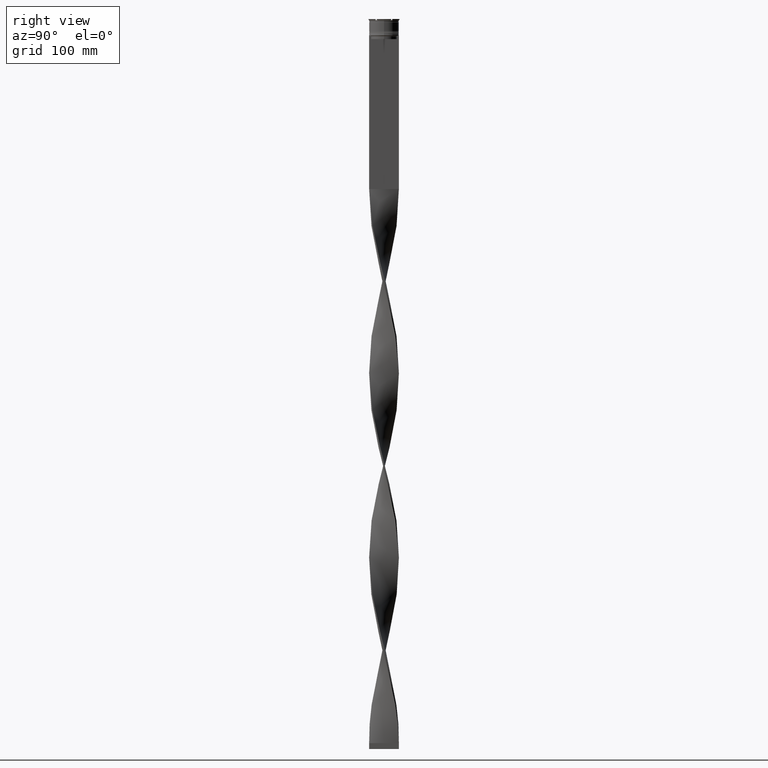
[diagram: clean part render]
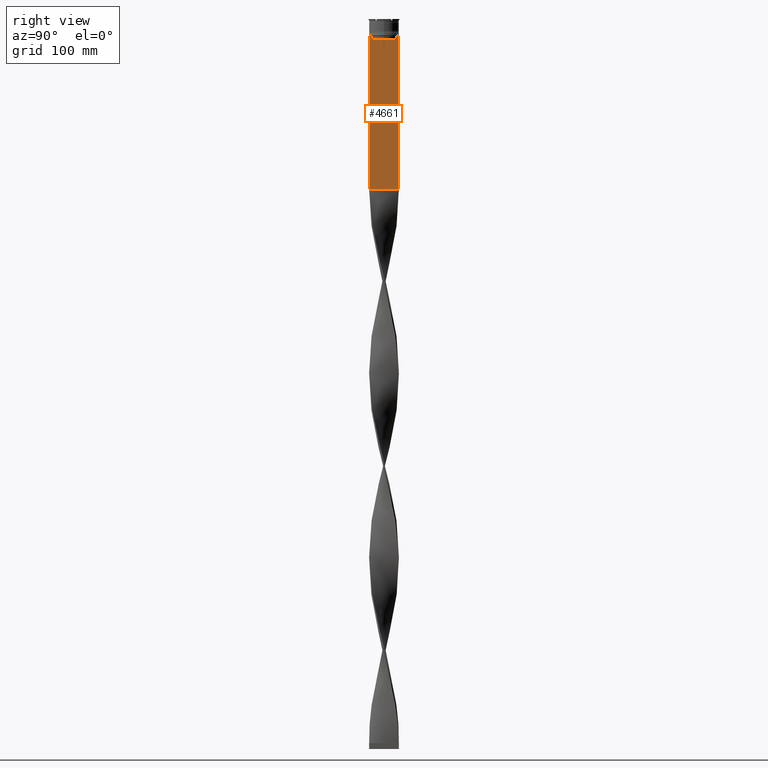
[diagram: same view with one face highlighted and labeled with its STEP entity id]
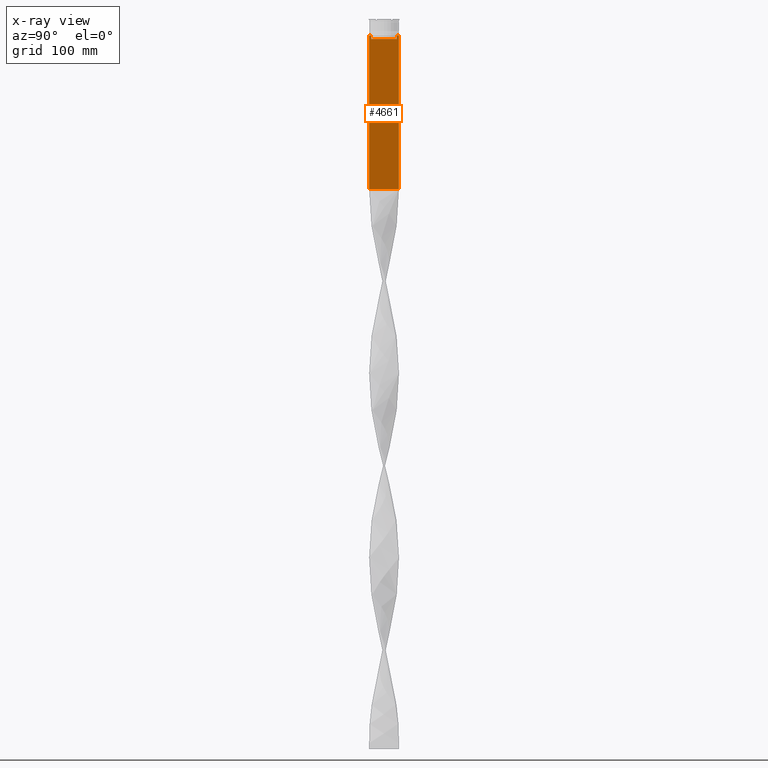
[diagram: x-ray of the same camera — body ghosted, the highlighted face saturated]
A machine part, right view. The second image highlights one B-rep face of the part: STEP entity #4661.
The next image is the same camera in x-ray: the body ghosted, the highlighted face saturated — about 0% of this face is hidden behind the body in this view.
In plain terms, the highlighted planar face has unit normal (-1, 0, 0).
Its self-contained STEP definition (entity closure, byte-faithful):
#203 = VECTOR ( 'NONE', #1171, 1000.000000000000000 ) ;
#249 = CARTESIAN_POINT ( 'NONE',  ( 0.7500000000000002220, 10.90000000000000213, -17.00000000000000000 ) ) ;
#312 = CARTESIAN_POINT ( 'NONE',  ( 0.7500000000000002220, -10.87416663473574197, -14.50000000000000000 ) ) ;
#315 = ORIENTED_EDGE ( 'NONE', *, *, #3338, .T. ) ;
#395 = VERTEX_POINT ( 'NONE', #4712 ) ;
#460 = ORIENTED_EDGE ( 'NONE', *, *, #1475, .T. ) ;
#494 = EDGE_CURVE ( 'NONE', #2293, #686, #2866, .T. ) ;
#495 = LINE ( 'NONE', #955, #4367 ) ;
#535 = CARTESIAN_POINT ( 'NONE',  ( 0.7500000000000002220, 10.87416663473574197, 0.000000000000000000 ) ) ;
#547 = CARTESIAN_POINT ( 'NONE',  ( 0.7500000000000002220, -11.37530219378809093, -14.00000000000000178 ) ) ;
#559 = ORIENTED_EDGE ( 'NONE', *, *, #494, .T. ) ;
#686 = VERTEX_POINT ( 'NONE', #2444 ) ;
#690 = CARTESIAN_POINT ( 'NONE',  ( 0.7500000000000002220, -12.50000000000000000, 11.04495957273638673 ) ) ;
#732 = B_SPLINE_CURVE_WITH_KNOTS ( 'NONE', 3,
 ( #312, #2910, #1038, #2467 ),
 .UNSPECIFIED., .F., .F.,
 ( 4, 4 ),
 ( 0.05009718908159448147, 0.05081156920313959630 ),
 .UNSPECIFIED. ) ;
#755 = VECTOR ( 'NONE', #1967, 1000.000000000000000 ) ;
#893 = LINE ( 'NONE', #1679, #4834 ) ;
#942 = FACE_OUTER_BOUND ( 'NONE', #2291, .T. ) ;
#955 = CARTESIAN_POINT ( 'NONE',  ( 0.7500000000000002220, -12.50000000000000000, -14.00000000000000178 ) ) ;
#968 = LINE ( 'NONE', #535, #4756 ) ;
#1038 = CARTESIAN_POINT ( 'NONE',  ( 0.7500000000000002220, -11.20826532207830439, -14.16667499063191826 ) ) ;
#1041 = VERTEX_POINT ( 'NONE', #1154 ) ;
#1154 = CARTESIAN_POINT ( 'NONE',  ( 0.7500000000000002220, -10.87416663473574197, -14.50000000000000000 ) ) ;
#1171 = DIRECTION ( 'NONE',  ( -0.000000000000000000, -0.000000000000000000, 1.000000000000000000 ) ) ;
#1211 = CARTESIAN_POINT ( 'NONE',  ( 0.7500000000000002220, 12.37729776647553059, -14.00000000000000178 ) ) ;
#1245 = EDGE_CURVE ( 'NONE', #1041, #1670, #732, .T. ) ;
#1341 = VERTEX_POINT ( 'NONE', #4137 ) ;
#1441 = CARTESIAN_POINT ( 'NONE',  ( 0.7500000000000002220, 11.37530219378809093, -14.00000000000000178 ) ) ;
#1475 = EDGE_CURVE ( 'NONE', #2547, #4163, #1497, .T. ) ;
#1482 = DIRECTION ( 'NONE',  ( 0.000000000000000000, 0.000000000000000000, -1.000000000000000000 ) ) ;
#1495 = VERTEX_POINT ( 'NONE', #4109 ) ;
#1497 = LINE ( 'NONE', #4548, #2939 ) ;
#1513 = LINE ( 'NONE', #4176, #755 ) ;
#1519 = DIRECTION ( 'NONE',  ( 0.000000000000000000, 0.000000000000000000, -1.000000000000000000 ) ) ;
#1562 = ORIENTED_EDGE ( 'NONE', *, *, #2566, .T. ) ;
#1670 = VERTEX_POINT ( 'NONE', #547 ) ;
#1679 = CARTESIAN_POINT ( 'NONE',  ( 0.7500000000000002220, -12.50000000000000000, -14.00000000000000178 ) ) ;
#1753 = CARTESIAN_POINT ( 'NONE',  ( 0.7500000000000002220, -12.50000000000000000, -14.00000000000000178 ) ) ;
#1838 = DIRECTION ( 'NONE',  ( 0.000000000000000000, -1.000000000000000000, 0.000000000000000000 ) ) ;
#1967 = DIRECTION ( 'NONE',  ( 0.000000000000000000, 1.000000000000000000, 0.000000000000000000 ) ) ;
#2001 = CARTESIAN_POINT ( 'NONE',  ( 0.7500000000000002220, -12.37729776647553059, -14.00000000000000178 ) ) ;
#2099 = VECTOR ( 'NONE', #1838, 1000.000000000000000 ) ;
#2134 = B_SPLINE_CURVE_WITH_KNOTS ( 'NONE', 3,
 ( #1441, #2967, #2945, #4079 ),
 .UNSPECIFIED., .F., .F.,
 ( 4, 4 ),
 ( 0.01936090553552769281, 0.02006881572333104116 ),
 .UNSPECIFIED. ) ;
#2166 = DIRECTION ( 'NONE',  ( 0.000000000000000000, -1.000000000000000000, 0.000000000000000000 ) ) ;
#2190 = DIRECTION ( 'NONE',  ( -1.000000000000000000, 0.000000000000000000, 0.000000000000000000 ) ) ;
#2291 = EDGE_LOOP ( 'NONE', ( #559, #3278, #1562, #3524, #2862, #2623, #4165, #4184, #460, #4245, #3686, #315 ) ) ;
#2293 = VERTEX_POINT ( 'NONE', #1211 ) ;
#2444 = CARTESIAN_POINT ( 'NONE',  ( 0.7500000000000002220, 11.37530219378809093, -14.00000000000000178 ) ) ;
#2455 = EDGE_CURVE ( 'NONE', #1495, #1041, #4543, .T. ) ;
#2467 = CARTESIAN_POINT ( 'NONE',  ( 0.7500000000000002220, -11.37530219378809093, -14.00000000000000178 ) ) ;
#2473 = DIRECTION ( 'NONE',  ( 0.000000000000000000, 0.000000000000000000, -1.000000000000000000 ) ) ;
#2504 = DIRECTION ( 'NONE',  ( 0.000000000000000000, -1.000000000000000000, 0.000000000000000000 ) ) ;
#2546 = EDGE_CURVE ( 'NONE', #4415, #2547, #893, .T. ) ;
#2547 = VERTEX_POINT ( 'NONE', #1753 ) ;
#2560 = LINE ( 'NONE', #4446, #2099 ) ;
#2566 = EDGE_CURVE ( 'NONE', #1341, #4027, #968, .T. ) ;
#2585 = DIRECTION ( 'NONE',  ( 0.000000000000000000, 0.000000000000000000, 1.000000000000000000 ) ) ;
#2623 = ORIENTED_EDGE ( 'NONE', *, *, #1245, .T. ) ;
#2862 = ORIENTED_EDGE ( 'NONE', *, *, #2455, .T. ) ;
#2866 = LINE ( 'NONE', #3655, #3797 ) ;
#2894 = DIRECTION ( 'NONE',  ( 0.000000000000000000, -1.000000000000000000, 0.000000000000000000 ) ) ;
#2910 = CARTESIAN_POINT ( 'NONE',  ( 0.7500000000000002220, -11.04122051801870441, -14.33334204001847567 ) ) ;
#2939 = VECTOR ( 'NONE', #1519, 1000.000000000000000 ) ;
#2945 = CARTESIAN_POINT ( 'NONE',  ( 0.7500000000000002220, 11.04122051153452055, -14.33334204648729404 ) ) ;
#2967 = CARTESIAN_POINT ( 'NONE',  ( 0.7500000000000002220, 11.20826531587977648, -14.16667499681701514 ) ) ;
#3054 = LINE ( 'NONE', #4460, #4603 ) ;
#3087 = CARTESIAN_POINT ( 'NONE',  ( 0.7500000000000002220, -10.87416663473574197, 0.000000000000000000 ) ) ;
#3278 = ORIENTED_EDGE ( 'NONE', *, *, #3552, .T. ) ;
#3311 = PLANE ( 'NONE',  #4768 ) ;
#3338 = EDGE_CURVE ( 'NONE', #395, #2293, #495, .T. ) ;
#3342 = VECTOR ( 'NONE', #2166, 1000.000000000000000 ) ;
#3524 = ORIENTED_EDGE ( 'NONE', *, *, #3682, .T. ) ;
#3552 = EDGE_CURVE ( 'NONE', #686, #1341, #2134, .T. ) ;
#3655 = CARTESIAN_POINT ( 'NONE',  ( 0.7500000000000002220, -12.50000000000000000, -14.00000000000000178 ) ) ;
#3682 = EDGE_CURVE ( 'NONE', #4027, #1495, #4057, .T. ) ;
#3686 = ORIENTED_EDGE ( 'NONE', *, *, #4100, .F. ) ;
#3797 = VECTOR ( 'NONE', #2894, 1000.000000000000000 ) ;
#3953 = CARTESIAN_POINT ( 'NONE',  ( 0.7500000000000002220, 10.87416663473574019, -17.00000000000000000 ) ) ;
#4027 = VERTEX_POINT ( 'NONE', #3953 ) ;
#4057 = LINE ( 'NONE', #249, #3342 ) ;
#4074 = VERTEX_POINT ( 'NONE', #4664 ) ;
#4079 = CARTESIAN_POINT ( 'NONE',  ( 0.7500000000000002220, 10.87416663473574197, -14.50000000000000000 ) ) ;
#4100 = EDGE_CURVE ( 'NONE', #395, #4074, #3054, .T. ) ;
#4109 = CARTESIAN_POINT ( 'NONE',  ( 0.7500000000000002220, -10.87416663473574019, -17.00000000000000000 ) ) ;
#4137 = CARTESIAN_POINT ( 'NONE',  ( 0.7500000000000002220, 10.87416663473574197, -14.50000000000000000 ) ) ;
#4143 = CARTESIAN_POINT ( 'NONE',  ( 0.7500000000000002220, -12.50000000000000000, -143.0000000000000284 ) ) ;
#4163 = VERTEX_POINT ( 'NONE', #4143 ) ;
#4165 = ORIENTED_EDGE ( 'NONE', *, *, #4609, .T. ) ;
#4176 = CARTESIAN_POINT ( 'NONE',  ( 0.7500000000000002220, -12.50000000000000000, -143.0000000000000284 ) ) ;
#4184 = ORIENTED_EDGE ( 'NONE', *, *, #2546, .T. ) ;
#4245 = ORIENTED_EDGE ( 'NONE', *, *, #4793, .T. ) ;
#4323 = DIRECTION ( 'NONE',  ( 0.000000000000000000, -1.000000000000000000, 0.000000000000000000 ) ) ;
#4367 = VECTOR ( 'NONE', #4323, 1000.000000000000000 ) ;
#4415 = VERTEX_POINT ( 'NONE', #2001 ) ;
#4446 = CARTESIAN_POINT ( 'NONE',  ( 0.7500000000000002220, -12.50000000000000000, -14.00000000000000178 ) ) ;
#4460 = CARTESIAN_POINT ( 'NONE',  ( 0.7500000000000002220, 12.50000000000000000, 11.04495957273638673 ) ) ;
#4543 = LINE ( 'NONE', #3087, #203 ) ;
#4548 = CARTESIAN_POINT ( 'NONE',  ( 0.7500000000000002220, -12.50000000000000000, 11.04495957273638673 ) ) ;
#4603 = VECTOR ( 'NONE', #1482, 1000.000000000000000 ) ;
#4609 = EDGE_CURVE ( 'NONE', #1670, #4415, #2560, .T. ) ;
#4661 = ADVANCED_FACE ( 'NONE', ( #942 ), #3311, .F. ) ;
#4664 = CARTESIAN_POINT ( 'NONE',  ( 0.7500000000000002220, 12.50000000000000000, -143.0000000000000284 ) ) ;
#4712 = CARTESIAN_POINT ( 'NONE',  ( 0.7500000000000002220, 12.50000000000000000, -14.00000000000000178 ) ) ;
#4756 = VECTOR ( 'NONE', #2473, 1000.000000000000000 ) ;
#4768 = AXIS2_PLACEMENT_3D ( 'NONE', #690, #2190, #2585 ) ;
#4793 = EDGE_CURVE ( 'NONE', #4163, #4074, #1513, .T. ) ;
#4834 = VECTOR ( 'NONE', #2504, 1000.000000000000000 ) ;